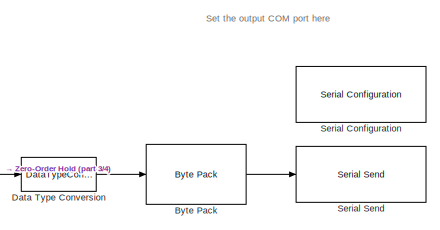
[diagram: root canvas - part 1/4, top right region]
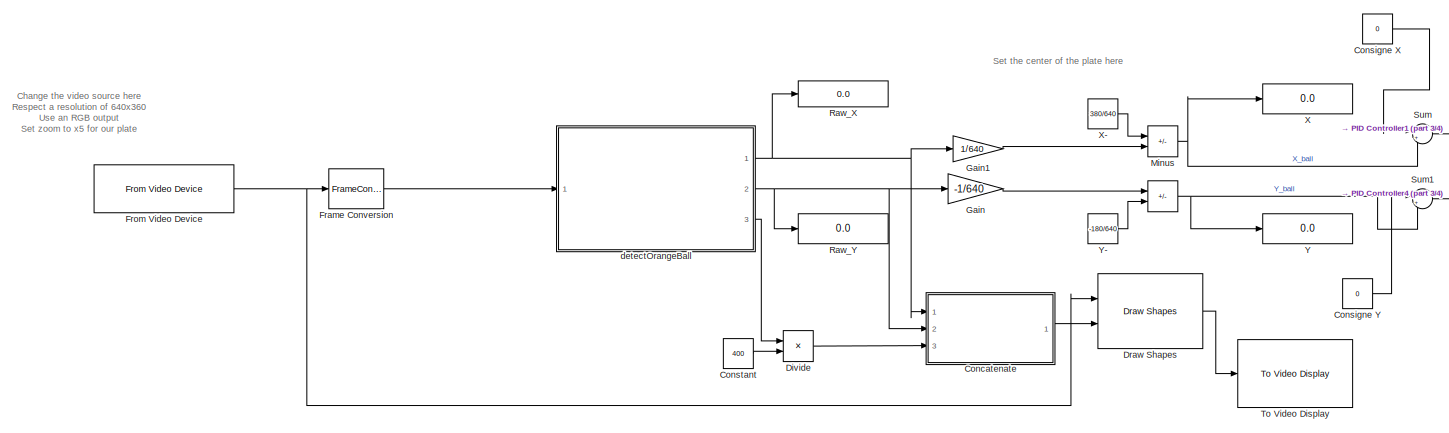
[diagram: root canvas - part 2/4, middle left region]
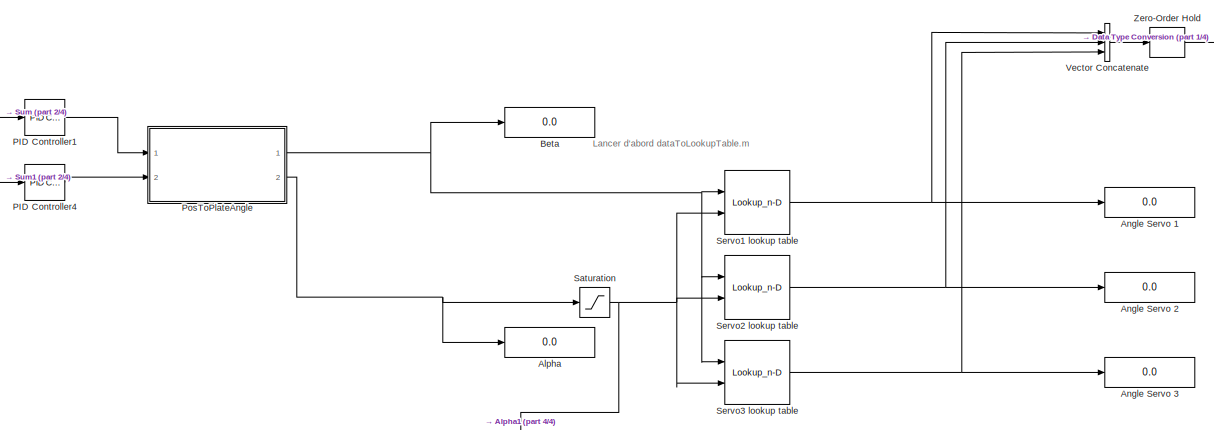
[diagram: root canvas - part 3/4, central region]
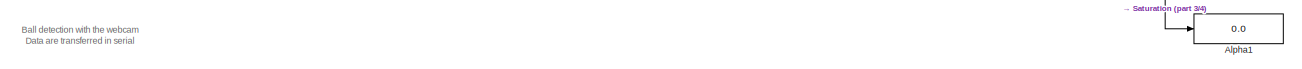
[diagram: root canvas - part 4/4, bottom center region]
MODEL slx_ef9d3dc5e921
KIND model
CONFIG AbsTol = auto
CONFIG EnableMultiTasking = off
CONFIG FixedStep = 1/30
CONFIG MaxStep = auto
CONFIG MinStep = auto
CONFIG RelTol = 1e-3
CONFIG SampleTimeConstraint = Unconstrained
CONFIG Solver = ode3
CONFIG SolverName = ode3
CONFIG StartTime = 0.0
CONFIG StopTime = inf
BLOCK [Sum]  
  IconShape = rectangular
  Inputs = +-
  Ports = [2, 1]
BLOCK [Display] Alpha
  Decimation = 1
  Ports = [1]
BLOCK [Display] Alpha1
  Decimation = 1
  Ports = [1]
BLOCK [Display] Angle Servo 1
  Decimation = 1
  Ports = [1]
BLOCK [Display] Angle Servo 2
  Decimation = 1
  Ports = [1]
BLOCK [Display] Angle Servo 3
  Decimation = 1
  Ports = [1]
BLOCK [Display] Beta
  Decimation = 1
  Ports = [1]
BLOCK [Reference] Byte Pack  REF=svdutilitieslib/Byte Pack
  Ports = [1, 1]
  SourceBlock = svdutilitieslib/Byte Pack
  SourceProductBaseCode = ARDUINO,ML_ARDUINO,ECCORTEXA,ECCORTEXR,SC_BEAGLEBONE_BLUE,EC_FREEDOM_BOARD,EC_FRDM_K64F,INTEL_BLOCKSET,MICROBIT,NUCLEO,PX4AUTOPILOTS,RASPPIIO,STMICRODIS,TIC2000,XILINX_BLOCKSET
  SourceType = Byte pack
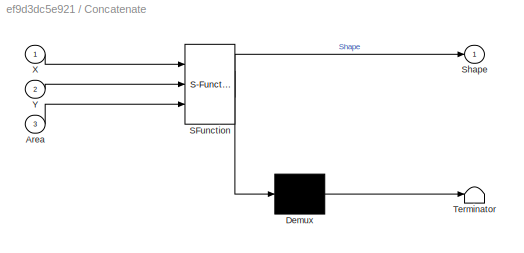
BLOCK [SubSystem] Concatenate
  ErrorFcn = Stateflow.Translate.translate
  PermitHierarchicalResolution = ExplicitOnly
  Ports = [3, 1]
  RequestExecContextInheritance = off
  SFBlockType = MATLAB Function
  TreatAsAtomicUnit = on
BLOCK [Demux] Concatenate/ Demux 
  Outputs = 1
  Ports = [1, 1]
BLOCK [S-Function] Concatenate/ SFunction 
  EnableBusSupport = on
  FunctionName = sf_sfun
  PortCounts = [3 2]
  Ports = [3, 2]
  SFcnIsStateOwnerBlock = off
  SFunctionDeploymentMode = off
  Tag = Stateflow S-Function 1
BLOCK [Terminator] Concatenate/ Terminator 
BLOCK [Inport] Concatenate/Area
  Port = 3
BLOCK [Outport] Concatenate/Shape
BLOCK [Inport] Concatenate/X
BLOCK [Inport] Concatenate/Y
  Port = 2
BLOCK [Constant] Consigne X
  Value = 0
BLOCK [Constant] Consigne Y
  Value = 0
BLOCK [Constant] Constant
  Value = 400
BLOCK [DataTypeConversion] Data Type Conversion
  OutDataTypeStr = single
  RndMeth = Floor
  SaturateOnIntegerOverflow = off
BLOCK [Product] Divide
  Inputs = */
  Ports = [2, 1]
BLOCK [Reference] Draw Shapes  REF=visiontextngfix/Draw Shapes
  Ports = [2, 1]
  SourceBlock = visiontextngfix/Draw Shapes
  SourceProductBaseCode = VP
  SourceType = Draw Shapes
BLOCK [FrameConversion] Frame Conversion
  OutFrame = Sample-based
  Ports = [1, 1]
BLOCK [Reference] From Video Device  REF=imaqlib/From Video Device
  Ports = [0, 1]
  SourceBlock = imaqlib/From Video Device
  SourceProductBaseCode = IA
  SourceType = From Video Device
  UserDataPersistent = on
BLOCK [Gain] Gain
  Gain = -1/640
BLOCK [Gain] Gain1
  Gain = 1/640
BLOCK [Sum] Minus
  IconShape = rectangular
  Inputs = -+
  Ports = [2, 1]
BLOCK [Reference] PID Controller1  REF=simulink/Continuous/PID Controller
  Ports = [1, 1]
  SourceBlock = simulink/Continuous/PID Controller
  SourceProductBaseCode = SL
  SourceType = PID 1dof
BLOCK [Reference] PID Controller4  REF=simulink/Continuous/PID Controller
  Ports = [1, 1]
  SourceBlock = simulink/Continuous/PID Controller
  SourceProductBaseCode = SL
  SourceType = PID 1dof
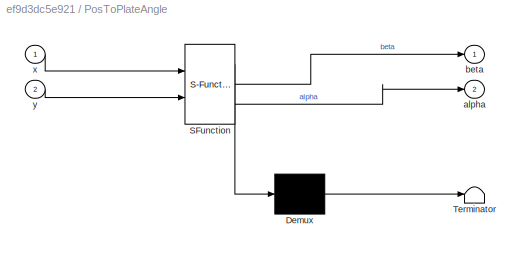
BLOCK [SubSystem] PosToPlateAngle
  ErrorFcn = Stateflow.Translate.translate
  PermitHierarchicalResolution = ExplicitOnly
  Ports = [2, 2]
  RequestExecContextInheritance = off
  SFBlockType = MATLAB Function
  TreatAsAtomicUnit = on
BLOCK [Demux] PosToPlateAngle/ Demux 
  Outputs = 1
  Ports = [1, 1]
BLOCK [S-Function] PosToPlateAngle/ SFunction 
  EnableBusSupport = on
  FunctionName = sf_sfun
  PortCounts = [2 3]
  Ports = [2, 3]
  SFcnIsStateOwnerBlock = off
  SFunctionDeploymentMode = off
  Tag = Stateflow S-Function 4
BLOCK [Terminator] PosToPlateAngle/ Terminator 
BLOCK [Outport] PosToPlateAngle/alpha
  Port = 2
BLOCK [Outport] PosToPlateAngle/beta
BLOCK [Inport] PosToPlateAngle/x
BLOCK [Inport] PosToPlateAngle/y
  Port = 2
BLOCK [Display] Raw_X
  Decimation = 1
  Ports = [1]
BLOCK [Display] Raw_Y
  Decimation = 1
  Ports = [1]
BLOCK [Saturate] Saturation
  LowerLimit = 0
  UpperLimit = 35
BLOCK [Reference] Serial Configuration  REF=instrumentlib/Serial Configuration
  Ports = []
  Priority = -200000
  SourceBlock = instrumentlib/Serial Configuration
  SourceProductBaseCode = IC
  SourceType = Serial Configuration
BLOCK [Reference] Serial Send  REF=instrumentlib/Serial Send
  Ports = [1]
  SourceBlock = instrumentlib/Serial Send
  SourceProductBaseCode = IC
  SourceType = Serial Send
BLOCK [Lookup_n-D] Servo1 lookup table
  BreakpointsForDimension1 = [1:1801]
  BreakpointsForDimension1FirstPoint = 0
  BreakpointsForDimension1Spacing = 0.2
  BreakpointsForDimension2 = [1:176]
  BreakpointsForDimension2FirstPoint = 0
  BreakpointsForDimension2Spacing = 0.2
  BreakpointsForDimension3 = [2:316988]
  BreakpointsSpecification = Even spacing
  IndexSearchMethod = Evenly spaced points
  InternalRulePriority = Speed
  InterpMethod = Nearest
  OutDataTypeStr = double
  OutMax = [3]
  OutMin = [3]
  Ports = [2, 1]
  RndMeth = Simplest
  Table = AValues
  TableDataTypeStr = Inherit: Inherit from 'Table data'
BLOCK [Lookup_n-D] Servo2 lookup table
  BreakpointsForDimension1 = [1:1801]
  BreakpointsForDimension1FirstPoint = 0
  BreakpointsForDimension1Spacing = 0.2
  BreakpointsForDimension2 = [1:176]
  BreakpointsForDimension2FirstPoint = 0
  BreakpointsForDimension2Spacing = 0.2
  BreakpointsForDimension3 = [2:316988]
  BreakpointsSpecification = Even spacing
  IndexSearchMethod = Evenly spaced points
  InternalRulePriority = Speed
  InterpMethod = Nearest
  OutDataTypeStr = double
  OutMax = [3]
  OutMin = [3]
  Ports = [2, 1]
  RndMeth = Simplest
  Table = BValues
  TableDataTypeStr = Inherit: Inherit from 'Table data'
BLOCK [Lookup_n-D] Servo3 lookup table
  BreakpointsForDimension1 = [1:1801]
  BreakpointsForDimension1FirstPoint = 0
  BreakpointsForDimension1Spacing = 0.2
  BreakpointsForDimension2 = [1:176]
  BreakpointsForDimension2FirstPoint = 0
  BreakpointsForDimension2Spacing = 0.2
  BreakpointsForDimension3 = [2:316988]
  BreakpointsSpecification = Even spacing
  IndexSearchMethod = Evenly spaced points
  InternalRulePriority = Speed
  InterpMethod = Nearest
  OutDataTypeStr = double
  OutMax = [3]
  OutMin = [3]
  Ports = [2, 1]
  RndMeth = Simplest
  Table = CValues
  TableDataTypeStr = Inherit: Inherit from 'Table data'
BLOCK [Sum] Sum
  Inputs = |+-
  Ports = [2, 1]
BLOCK [Sum] Sum1
  Inputs = |+-
  Ports = [2, 1]
BLOCK [Reference] To Video Display  REF=visionsinks/To Video Display
  Ports = [1]
  SourceBlock = visionsinks/To Video Display
  SourceProductBaseCode = VP
  SourceType = To Video Display
BLOCK [Concatenate] Vector Concatenate
  NumInputs = 3
  Ports = [3, 1]
BLOCK [Display] X
  Decimation = 1
  Ports = [1]
BLOCK [Constant] X-
  Value = 380/640
BLOCK [Display] Y
  Decimation = 1
  Ports = [1]
BLOCK [Constant] Y-
  Value = -180/640
BLOCK [ZeroOrderHold] Zero-Order Hold
  SampleTime = 0.2
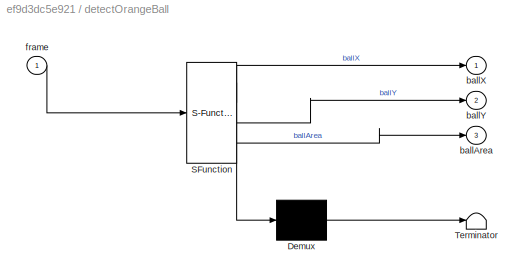
BLOCK [SubSystem] detectOrangeBall
  ErrorFcn = Stateflow.Translate.translate
  PermitHierarchicalResolution = ExplicitOnly
  Ports = [1, 3]
  RTWFcnName = detectOrangeBall
  RTWFcnNameOpts = User specified
  RTWSystemCode = Reusable function
  RequestExecContextInheritance = off
  SFBlockType = MATLAB Function
  TreatAsAtomicUnit = on
BLOCK [Demux] detectOrangeBall/ Demux 
  Outputs = 1
  Ports = [1, 1]
BLOCK [S-Function] detectOrangeBall/ SFunction 
  EnableBusSupport = on
  FunctionName = sf_sfun
  PortCounts = [1 4]
  Ports = [1, 4]
  SFcnIsStateOwnerBlock = off
  SFunctionDeploymentMode = off
  Tag = Stateflow S-Function 2
BLOCK [Terminator] detectOrangeBall/ Terminator 
BLOCK [Outport] detectOrangeBall/ballArea
  Port = 3
BLOCK [Outport] detectOrangeBall/ballX
BLOCK [Outport] detectOrangeBall/ballY
  Port = 2
BLOCK [Inport] detectOrangeBall/frame
ANNOTATION (root): Ball detection with the webcam Data are transferred in serial
ANNOTATION (root): Change the video source here Respect a resolution of 640x360 Use an RGB output Set zoom to x5 for our plate
ANNOTATION (root): Lancer d'abord dataToLookupTable.m
ANNOTATION (root): Set the center of the plate here
ANNOTATION (root): Set the output COM port here
NET  :1 -> Sum1:2, Y:1
LINE Byte Pack:1 -> Serial Send:1
LINE Concatenate:1 -> Draw Shapes:2
LINE Consigne X:1 -> Sum:1
LINE Consigne Y:1 -> Sum1:1
LINE Constant:1 -> Divide:2
LINE Data Type Conversion:1 -> Byte Pack:1
LINE Divide:1 -> Concatenate:3
LINE Draw Shapes:1 -> To Video Display:1
LINE Frame Conversion:1 -> detectOrangeBall:1
NET From Video Device:1 -> Draw Shapes:1, Frame Conversion:1
LINE Gain1:1 -> Minus:2
LINE Gain:1 ->  :1
NET Minus:1 -> Sum:2, X:1
LINE PID Controller1:1 -> PosToPlateAngle:1
LINE PID Controller4:1 -> PosToPlateAngle:2
NET PosToPlateAngle:1 -> Beta:1, Servo1 lookup table:1, Servo2 lookup table:1, Servo3 lookup table:1
NET PosToPlateAngle:2 -> Alpha:1, Saturation:1
NET Saturation:1 -> Alpha1:1, Servo1 lookup table:2, Servo2 lookup table:2, Servo3 lookup table:2
NET Servo1 lookup table:1 -> Angle Servo 1:1, Vector Concatenate:1
NET Servo2 lookup table:1 -> Angle Servo 2:1, Vector Concatenate:2
NET Servo3 lookup table:1 -> Angle Servo 3:1, Vector Concatenate:3
LINE Sum1:1 -> PID Controller4:1
LINE Sum:1 -> PID Controller1:1
LINE Vector Concatenate:1 -> Zero-Order Hold:1
LINE X-:1 -> Minus:1
LINE Y-:1 ->  :2
LINE Zero-Order Hold:1 -> Data Type Conversion:1
NET detectOrangeBall:1 -> Concatenate:1, Gain1:1, Raw_X:1
NET detectOrangeBall:2 -> Concatenate:2, Gain:1, Raw_Y:1
LINE detectOrangeBall:3 -> Divide:1
note: NET lines group one-source signal fan-out (src -> all destinations, sorted); 1:1 wires keep LINE
CHART Concatenate states=1 transitions=1
  STATE_LABEL 'eML_blk_kernel()'
  STATE_LABEL 'SCRIPT:\nfunction Shape = Concatenate(X,Y ,Area)\nShape=[int32(X(1)), int32(Y(1)), int32(Area(1))];\n\n'
CHART detectOrangeBall states=1 transitions=1
  STATE_LABEL 'eML_blk_kernel()'
  STATE_LABEL "SCRIPT:\nfunction [ballX, ballY, ballArea] = detectOrangeBall(frame)\n% Create the default minimum and maximum HSV values for orange color\norangeMin =  [0.05 0.4 0.5];\norangeMax =  [0.15 1.0 1.0];\nballArea = int32(0); % Fixed size for Simulink\nDefaultX= int32(297.4);\nDefaultY= int32(198.5);\n% Create a blob analysis object\nblobAnalyzer = vision.BlobAnalysis('MinimumBlobArea', 100, 'MaximumBlobArea', ...<+1394ch>"
CHART PosToPlateAngle states=1 transitions=1
  STATE_LABEL 'eML_blk_kernel()'
  STATE_LABEL 'SCRIPT:\nfunction [beta,alpha] = PosToPlateAngle(x,y)\ntoDeg=180/pi;\n%%alpha=asin(sqrt(x^2+y^2))*toDeg;\n\n%alpha = asin(x)*toDeg;;\n% gamma = atan(y)*toDeg;\n\ngamma = atan(y/x)*toDeg;\n\nif (x>0 && y>=0)\n    beta=180-abs(gamma);\n elseif (x>0 && y<=0)\n     beta=180+abs(gamma);\n elseif(x<0 && y>=0)\n    beta=abs(gamma);\nelseif(x<0 && y<=0)\n    beta=360-abs(gamma);\nelseif(x==0 && y>= 0)\n    beta=90;\nelse\n   ...<+128ch>'
CHART  states=0 transitions=0
CHART  states=0 transitions=0
CHART  states=0 transitions=0
